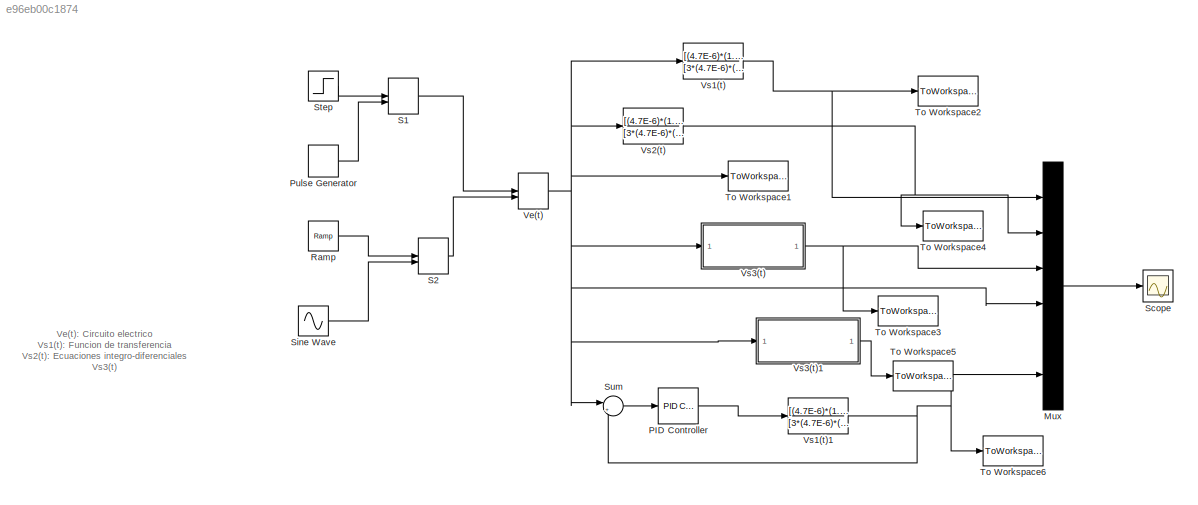
MODEL slx_e96eb00c1874
KIND model
CONFIG AbsTol = auto
CONFIG EnableMultiTasking = off
CONFIG FixedStep = auto
CONFIG MaxStep = auto
CONFIG MinStep = auto
CONFIG RelTol = 1e-3
CONFIG SampleTimeConstraint = Unconstrained
CONFIG SolverName = ode23t
CONFIG StartTime = 0.0
CONFIG StopTime = 10.0
BLOCK [Mux] Mux
  DisplayOption = bar
  Inputs = 6
BLOCK [Reference] PID Controller  REF=slpidlib/PID Controller
  LibrarySourceBlock = simulink/Continuous/PID Controller
  SourceBlock = slpidlib/PID Controller
  SourceType = PID 1dof
BLOCK [DiscretePulseGenerator] Pulse Generator
  Period = 10
  PhaseDelay = 1
  PulseType = Time based
  PulseWidth = 10
BLOCK [Reference] Ramp  REF=simulink/Sources/Ramp
  SourceBlock = simulink/Sources/Ramp
  SourceType = Ramp
BLOCK [ManualSwitch] S1
  CurrentSetting = 0
BLOCK [ManualSwitch] S2
  CurrentSetting = 0
BLOCK [Scope] Scope
  ActiveDisplayYMaximum = 1.4016296844259537
  ActiveDisplayYMinimum = -0.4451896203103759
  ContainerLayout = {"WindowBounds":[-9611,1999,300,129]}
  Floating = off
  GraphicalSettings = {"Style":{"BackgroundColor":[0,0,0],"AxesColor":[0.07058823529411765,0.07058823529411765,0.07058823529411765],"LabelsColor":[0,1,0],"PreserveColors":false,"Visible":[true,false,false,false,true,false],"LineStyle":["-","-","-","-","-","-"],"LineWidth":[1.5,1.5,1.5,1.5,1.5,1.5],"BarWidth":[0.9,0.9,0.9,0.9,0.9,0.9],"LineColor":[[0.9294117647058824,0.6941176470588235,0.12549019607843137],"auto","auto"...<+2489ch>
  MultipleDisplayCache = [{"MaxYLimMag":1.125,"MaxYLimReal":1.4016296844259537,"MinYLimMag":0,"MinYLimReal":-0.4451896203103759,"PlotAsMagnitudePhase":false,"ShowGrid":true,"ShowLegend":true,"Title":"%<SignalLabel>","YLabel":""}]
  NumInputPorts = 1
  ShowLegend = on
  Visible = on
  WasSavedAsWebScope = on
  WindowPosition = [389.000000,100.000000,1023.000000,584.000000,]
BLOCK [Sin] Sine Wave
  Frequency = pi/2
  SampleTime = 0
BLOCK [Step] Step
  Before = 1
  SampleTime = 0
  Time = 0
BLOCK [Sum] Sum
  Inputs = |+-
BLOCK [ToWorkspace] To Workspace1
  FixptAsFi = on
  MaxDataPoints = inf
  SampleTime = -1
  VariableName = Ve
BLOCK [ToWorkspace] To Workspace2
  FixptAsFi = on
  MaxDataPoints = inf
  SampleTime = -1
  VariableName = Vs1
BLOCK [ToWorkspace] To Workspace3
  FixptAsFi = on
  MaxDataPoints = inf
  SampleTime = -1
  VariableName = Vs3
BLOCK [ToWorkspace] To Workspace4
  FixptAsFi = on
  MaxDataPoints = inf
  SampleTime = -1
  VariableName = Vs2
BLOCK [ToWorkspace] To Workspace5
  FixptAsFi = on
  MaxDataPoints = inf
  SampleTime = -1
  VariableName = Ve4
BLOCK [ToWorkspace] To Workspace6
  FixptAsFi = on
  MaxDataPoints = inf
  SampleTime = -1
  VariableName = PID
BLOCK [ManualSwitch] Ve(t)
  CurrentSetting = 0
BLOCK [TransferFcn] Vs1(t)
  Denominator = [3*(4.7E-6)*(1.5E-3)*3300,(5*(4.7E-6)*(3300)^2+1.5E-3),2*3300]
  Numerator = [(4.7E-6)*(1.5E-3)*(3300),((4.7E-6)*(3300)^2+1.5E-3),3300]
BLOCK [TransferFcn] Vs1(t)1
  Denominator = [3*(4.7E-6)*(1.5E-3)*3300,(5*(4.7E-6)*(3300)^2+1.5E-3),2*3300]
  Numerator = [(4.7E-6)*(1.5E-3)*(3300),((4.7E-6)*(3300)^2+1.5E-3),3300]
BLOCK [TransferFcn] Vs2(t)
  Denominator = [3*(4.7E-6)*(1.5E-3)*3300,(5*(4.7E-6)*(3300)^2+1.5E-3),2*3300]
  Numerator = [(4.7E-6)*(1.5E-3)*(3300),((4.7E-6)*(3300)^2+1.5E-3),3300]
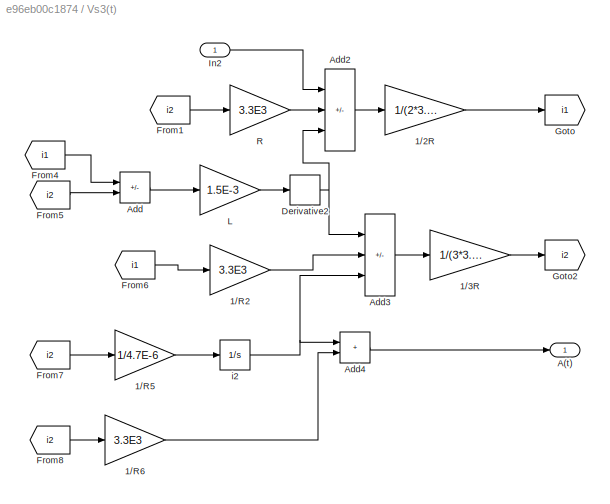
BLOCK [SubSystem] Vs3(t)
BLOCK [Gain] Vs3(t)/1//2R
  Gain = 1/(2*3.3E3)
BLOCK [Gain] Vs3(t)/1//3R
  Gain = 1/(3*3.3E3)
BLOCK [Gain] Vs3(t)/1//R2
  Gain = 3.3E3
BLOCK [Gain] Vs3(t)/1//R5
  Gain = 1/4.7E-6
BLOCK [Gain] Vs3(t)/1//R6
  Gain = 3.3E3
BLOCK [Outport] Vs3(t)/A(t)
BLOCK [Sum] Vs3(t)/Add
  IconShape = rectangular
  Inputs = +-
BLOCK [Sum] Vs3(t)/Add2
  IconShape = rectangular
  Inputs = ++-
BLOCK [Sum] Vs3(t)/Add3
  IconShape = rectangular
  Inputs = ++-
BLOCK [Sum] Vs3(t)/Add4
  IconShape = rectangular
BLOCK [Derivative] Vs3(t)/Derivative2
BLOCK [From] Vs3(t)/From1
  GotoTag = i2
BLOCK [From] Vs3(t)/From4
  GotoTag = i1
BLOCK [From] Vs3(t)/From5
  GotoTag = i2
BLOCK [From] Vs3(t)/From6
  GotoTag = i1
BLOCK [From] Vs3(t)/From7
  GotoTag = i2
BLOCK [From] Vs3(t)/From8
  GotoTag = i2
BLOCK [Goto] Vs3(t)/Goto
  GotoTag = i1
BLOCK [Goto] Vs3(t)/Goto2
  GotoTag = i2
BLOCK [Inport] Vs3(t)/In2
BLOCK [Gain] Vs3(t)/L
  Gain = 1.5E-3
BLOCK [Gain] Vs3(t)/R
  Gain = 3.3E3
BLOCK [Integrator] Vs3(t)/i2
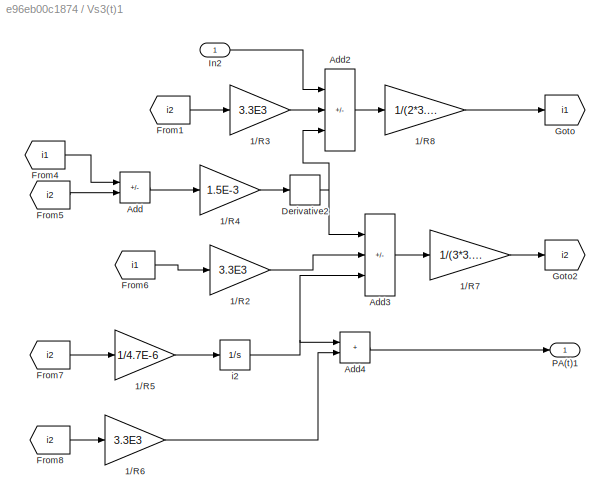
BLOCK [SubSystem] Vs3(t)1
BLOCK [Gain] Vs3(t)1/1//R2
  Gain = 3.3E3
BLOCK [Gain] Vs3(t)1/1//R3
  Gain = 3.3E3
BLOCK [Gain] Vs3(t)1/1//R4
  Gain = 1.5E-3
BLOCK [Gain] Vs3(t)1/1//R5
  Gain = 1/4.7E-6
BLOCK [Gain] Vs3(t)1/1//R6
  Gain = 3.3E3
BLOCK [Gain] Vs3(t)1/1//R7
  Gain = 1/(3*3.3E3)
BLOCK [Gain] Vs3(t)1/1//R8
  Gain = 1/(2*3.3E3)
BLOCK [Sum] Vs3(t)1/Add
  IconShape = rectangular
  Inputs = +-
BLOCK [Sum] Vs3(t)1/Add2
  IconShape = rectangular
  Inputs = ++-
BLOCK [Sum] Vs3(t)1/Add3
  IconShape = rectangular
  Inputs = ++-
BLOCK [Sum] Vs3(t)1/Add4
  IconShape = rectangular
BLOCK [Derivative] Vs3(t)1/Derivative2
BLOCK [From] Vs3(t)1/From1
  GotoTag = i2
BLOCK [From] Vs3(t)1/From4
  GotoTag = i1
BLOCK [From] Vs3(t)1/From5
  GotoTag = i2
BLOCK [From] Vs3(t)1/From6
  GotoTag = i1
BLOCK [From] Vs3(t)1/From7
  GotoTag = i2
BLOCK [From] Vs3(t)1/From8
  GotoTag = i2
BLOCK [Goto] Vs3(t)1/Goto
  GotoTag = i1
BLOCK [Goto] Vs3(t)1/Goto2
  GotoTag = i2
BLOCK [Inport] Vs3(t)1/In2
BLOCK [Outport] Vs3(t)1/PA(t)1
BLOCK [Integrator] Vs3(t)1/i2
ANNOTATION (root): Ve(t): Circuito electrico Vs1(t): Funcion de transferencia Vs2(t): Ecuaciones integro-diferenciales Vs3(t)
LINE Mux:1 -> Scope:1
LINE PID Controller:1 -> Vs1(t)1:1
LINE Pulse Generator:1 -> S1:2
LINE Ramp:1 -> S2:1
LINE S1:1 -> Ve(t):1
LINE S2:1 -> Ve(t):2
LINE Sine Wave:1 -> S2:2
LINE Step:1 -> S1:1
LINE Sum:1 -> PID Controller:1
NET Ve(t):1 -> Mux:4, Sum:1, To Workspace1:1, Vs1(t):1, Vs2(t):1, Vs3(t)1:1, Vs3(t):1
NET Vs1(t)1:1 -> Mux:6, Sum:2, To Workspace6:1
NET Vs1(t):1 -> Mux:1, To Workspace2:1
NET Vs2(t):1 -> Mux:2, To Workspace4:1
LINE Vs3(t)/1//2R:1 -> Vs3(t)/Goto:1
LINE Vs3(t)/1//3R:1 -> Vs3(t)/Goto2:1
LINE Vs3(t)/1//R2:1 -> Vs3(t)/Add3:2
LINE Vs3(t)/1//R5:1 -> Vs3(t)/i2:1
LINE Vs3(t)/1//R6:1 -> Vs3(t)/Add4:2
LINE Vs3(t)/Add2:1 -> Vs3(t)/1//2R:1
LINE Vs3(t)/Add3:1 -> Vs3(t)/1//3R:1
LINE Vs3(t)/Add4:1 -> Vs3(t)/A(t):1
LINE Vs3(t)/Add:1 -> Vs3(t)/L:1
NET Vs3(t)/Derivative2:1 -> Vs3(t)/Add2:3, Vs3(t)/Add3:1
LINE Vs3(t)/From1:1 -> Vs3(t)/R:1
LINE Vs3(t)/From4:1 -> Vs3(t)/Add:1
LINE Vs3(t)/From5:1 -> Vs3(t)/Add:2
LINE Vs3(t)/From6:1 -> Vs3(t)/1//R2:1
LINE Vs3(t)/From7:1 -> Vs3(t)/1//R5:1
LINE Vs3(t)/From8:1 -> Vs3(t)/1//R6:1
LINE Vs3(t)/In2:1 -> Vs3(t)/Add2:1
LINE Vs3(t)/L:1 -> Vs3(t)/Derivative2:1
LINE Vs3(t)/R:1 -> Vs3(t)/Add2:2
NET Vs3(t)/i2:1 -> Vs3(t)/Add3:3, Vs3(t)/Add4:1
LINE Vs3(t)1/1//R2:1 -> Vs3(t)1/Add3:2
LINE Vs3(t)1/1//R3:1 -> Vs3(t)1/Add2:2
LINE Vs3(t)1/1//R4:1 -> Vs3(t)1/Derivative2:1
LINE Vs3(t)1/1//R5:1 -> Vs3(t)1/i2:1
LINE Vs3(t)1/1//R6:1 -> Vs3(t)1/Add4:2
LINE Vs3(t)1/1//R7:1 -> Vs3(t)1/Goto2:1
LINE Vs3(t)1/1//R8:1 -> Vs3(t)1/Goto:1
LINE Vs3(t)1/Add2:1 -> Vs3(t)1/1//R8:1
LINE Vs3(t)1/Add3:1 -> Vs3(t)1/1//R7:1
LINE Vs3(t)1/Add4:1 -> Vs3(t)1/PA(t)1:1
LINE Vs3(t)1/Add:1 -> Vs3(t)1/1//R4:1
NET Vs3(t)1/Derivative2:1 -> Vs3(t)1/Add2:3, Vs3(t)1/Add3:1
LINE Vs3(t)1/From1:1 -> Vs3(t)1/1//R3:1
LINE Vs3(t)1/From4:1 -> Vs3(t)1/Add:1
LINE Vs3(t)1/From5:1 -> Vs3(t)1/Add:2
LINE Vs3(t)1/From6:1 -> Vs3(t)1/1//R2:1
LINE Vs3(t)1/From7:1 -> Vs3(t)1/1//R5:1
LINE Vs3(t)1/From8:1 -> Vs3(t)1/1//R6:1
LINE Vs3(t)1/In2:1 -> Vs3(t)1/Add2:1
NET Vs3(t)1/i2:1 -> Vs3(t)1/Add3:3, Vs3(t)1/Add4:1
LINE Vs3(t)1:1 -> To Workspace5:1
NET Vs3(t):1 -> Mux:3, To Workspace3:1
note: NET lines group one-source signal fan-out (src -> all destinations, sorted); 1:1 wires keep LINE
